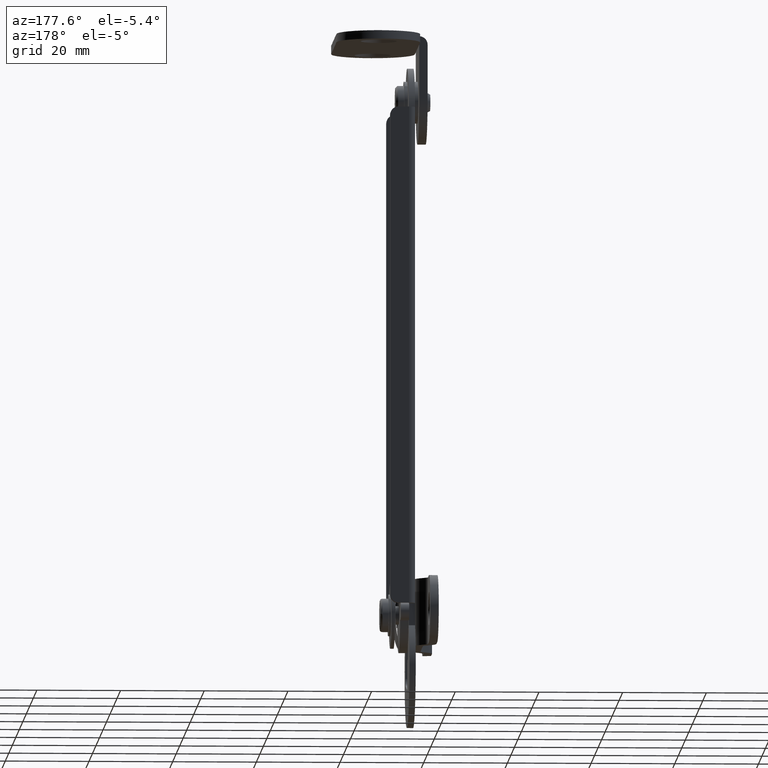
[diagram: clean part render]
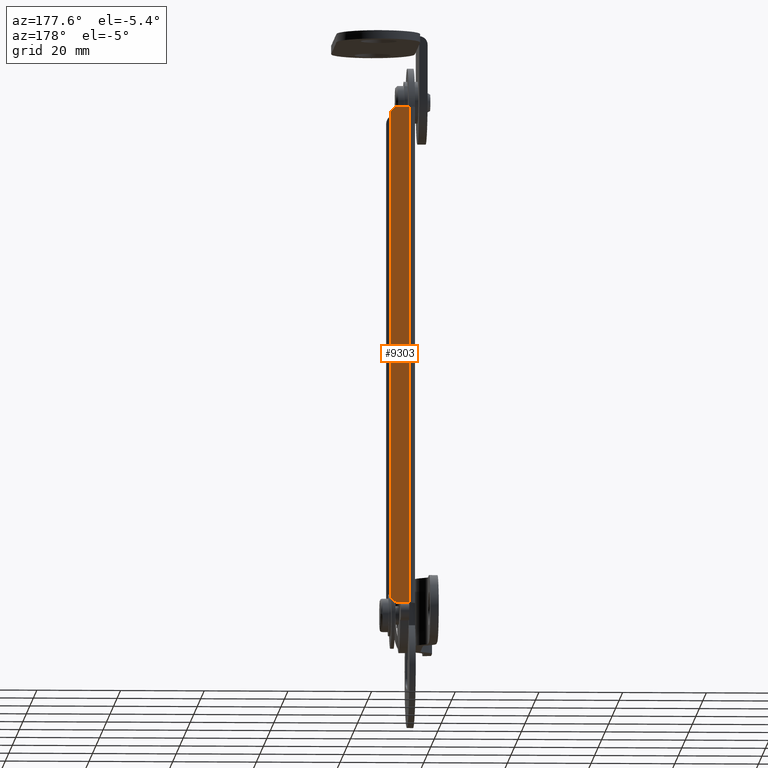
[diagram: same view with one face highlighted and labeled with its STEP entity id]
A machine part, auxiliary view. The second image highlights one B-rep face of the part: STEP entity #9303.
In plain terms, the highlighted face is a freeform B-spline surface patch.
Its self-contained STEP definition (entity closure, byte-faithful):
#8464=CARTESIAN_POINT('',(6.500000000000000,11.600006000000180,-2.0));
#8465=VERTEX_POINT('',#8464);
#8476=CARTESIAN_POINT('',(6.500000000000000,11.600006000000180,-121.000015000000000));
#8477=VERTEX_POINT('',#8476);
#8478=CARTESIAN_POINT('',(6.500000000000000,11.600006000000180,-121.000015000000000));
#8479=CARTESIAN_POINT('',(6.500000000000000,11.600006000000180,-2.0));
#8480=QUASI_UNIFORM_CURVE('',1,(#8478,#8479),.UNSPECIFIED.,.F.,.U.);
#8481=EDGE_CURVE('',#8477,#8465,#8480,.T.);
#8527=CARTESIAN_POINT('',(11.0,11.600006000000180,-4.0));
#8528=VERTEX_POINT('',#8527);
#8534=CARTESIAN_POINT('',(9.000000000000119,11.600006000000180,-2.0));
#8535=VERTEX_POINT('',#8534);
#8536=CARTESIAN_POINT('',(9.000000000000119,11.600006000000180,-2.0));
#8537=CARTESIAN_POINT('',(9.163609799962920,11.600006000000191,-1.999980338659633));
#8538=CARTESIAN_POINT('',(9.556367306183125,11.600006000000180,-2.048356787961522));
#8539=CARTESIAN_POINT('',(10.057233166205270,11.600006000000180,-2.270359711713155));
#8540=CARTESIAN_POINT('',(10.523381635410590,11.600006000000160,-2.662592010198478));
#8541=CARTESIAN_POINT('',(10.892438384160560,11.600006000000210,-3.214766650463893));
#8542=CARTESIAN_POINT('',(11.000337623155630,11.600006000000150,-3.721801830602515));
#8543=CARTESIAN_POINT('',(11.0,11.600006000000180,-4.0));
#8544=B_SPLINE_CURVE_WITH_KNOTS('',3,(#8536,#8537,#8538,#8539,#8540,#8541,#8542,#8543),.UNSPECIFIED.,.F.,.U.,(4,1,1,1,1,4),(0.000000633080364,0.490859883980974,1.178173080460091,1.619829693506787,2.307164052973284,3.141671488830840),.UNSPECIFIED.);
#8545=EDGE_CURVE('',#8535,#8528,#8544,.T.);
#8612=CARTESIAN_POINT('',(11.0,11.600006000000180,-119.000015000000000));
#8613=VERTEX_POINT('',#8612);
#8614=CARTESIAN_POINT('',(9.000000000000119,11.600006000000180,-121.000015000000000));
#8615=VERTEX_POINT('',#8614);
#8616=CARTESIAN_POINT('',(11.0,11.600006000000180,-119.000015000000000));
#8617=CARTESIAN_POINT('',(11.000513582882110,11.600006000000191,-119.311037276519800));
#8618=CARTESIAN_POINT('',(10.890961684781290,11.600006000000141,-119.768588200383310));
#8619=CARTESIAN_POINT('',(10.504833750479809,11.600006000000240,-120.362039779837600));
#8620=CARTESIAN_POINT('',(9.932028223956143,11.600006000000089,-120.844427257047400));
#8621=CARTESIAN_POINT('',(9.343743260093099,11.600006000000240,-121.000756272631090));
#8622=CARTESIAN_POINT('',(9.000000000000119,11.600006000000180,-121.000015000000000));
#8623=B_SPLINE_CURVE_WITH_KNOTS('',3,(#8616,#8617,#8618,#8619,#8620,#8621,#8622),.UNSPECIFIED.,.F.,.U.,(4,1,1,1,4),(0.000000633073592,0.932686972904734,1.374526102819505,2.110794237615133,3.141671488830847),.UNSPECIFIED.);
#8624=EDGE_CURVE('',#8613,#8615,#8623,.T.);
#9226=CARTESIAN_POINT('',(11.0,11.600006000000180,-4.0));
#9227=CARTESIAN_POINT('',(11.0,11.600006000000180,-119.000015000000000));
#9228=QUASI_UNIFORM_CURVE('',1,(#9226,#9227),.UNSPECIFIED.,.F.,.U.);
#9229=EDGE_CURVE('',#8528,#8613,#9228,.T.);
#9276=CARTESIAN_POINT('',(9.000000000000119,11.600006000000180,-121.000015000000000));
#9277=CARTESIAN_POINT('',(6.500000000000000,11.600006000000180,-121.000015000000000));
#9278=QUASI_UNIFORM_CURVE('',1,(#9276,#9277),.UNSPECIFIED.,.F.,.U.);
#9279=EDGE_CURVE('',#8615,#8477,#9278,.T.);
#9286=CARTESIAN_POINT('',(6.275225008721872,11.600006000000180,-126.944065518604900));
#9287=CARTESIAN_POINT('',(6.275225008721872,11.600006000000180,3.944053710434003));
#9288=CARTESIAN_POINT('',(11.224775111977531,11.600006000000180,-126.944065518604900));
#9289=CARTESIAN_POINT('',(11.224775111977531,11.600006000000180,3.944053710434003));
#9290=B_SPLINE_SURFACE_WITH_KNOTS('',1,1,((#9286,#9288),(#9287,#9289)),.UNSPECIFIED.,.F.,.F.,.U.,(2,2),(2,2),(0.0,130.888119229038890),(0.0,4.949550103255660),.UNSPECIFIED.);
#9291=ORIENTED_EDGE('',*,*,#9279,.T.);
#9292=ORIENTED_EDGE('',*,*,#8481,.T.);
#9293=CARTESIAN_POINT('',(9.000000000000119,11.600006000000180,-2.0));
#9294=CARTESIAN_POINT('',(6.500000000000000,11.600006000000180,-2.0));
#9295=QUASI_UNIFORM_CURVE('',1,(#9293,#9294),.UNSPECIFIED.,.F.,.U.);
#9296=EDGE_CURVE('',#8535,#8465,#9295,.T.);
#9297=ORIENTED_EDGE('',*,*,#9296,.F.);
#9298=ORIENTED_EDGE('',*,*,#8545,.T.);
#9299=ORIENTED_EDGE('',*,*,#9229,.T.);
#9300=ORIENTED_EDGE('',*,*,#8624,.T.);
#9301=EDGE_LOOP('',(#9291,#9292,#9297,#9298,#9299,#9300));
#9302=FACE_OUTER_BOUND('',#9301,.T.);
#9303=ADVANCED_FACE('',(#9302),#9290,.T.);